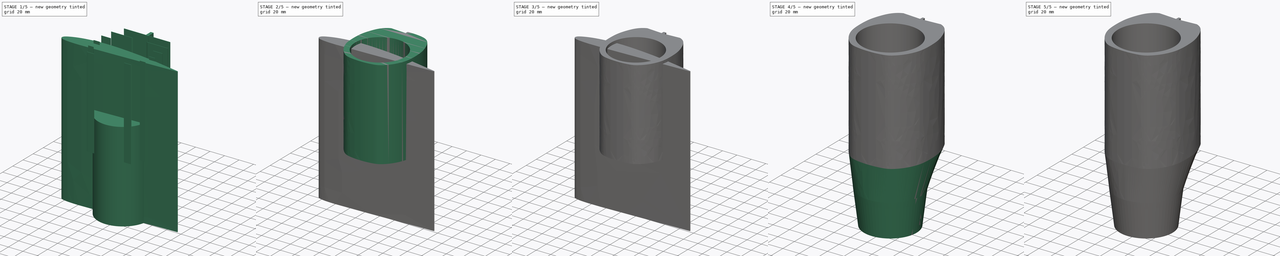
[diagram: build sequence overview — one tinted view per stage of 5, left to right]
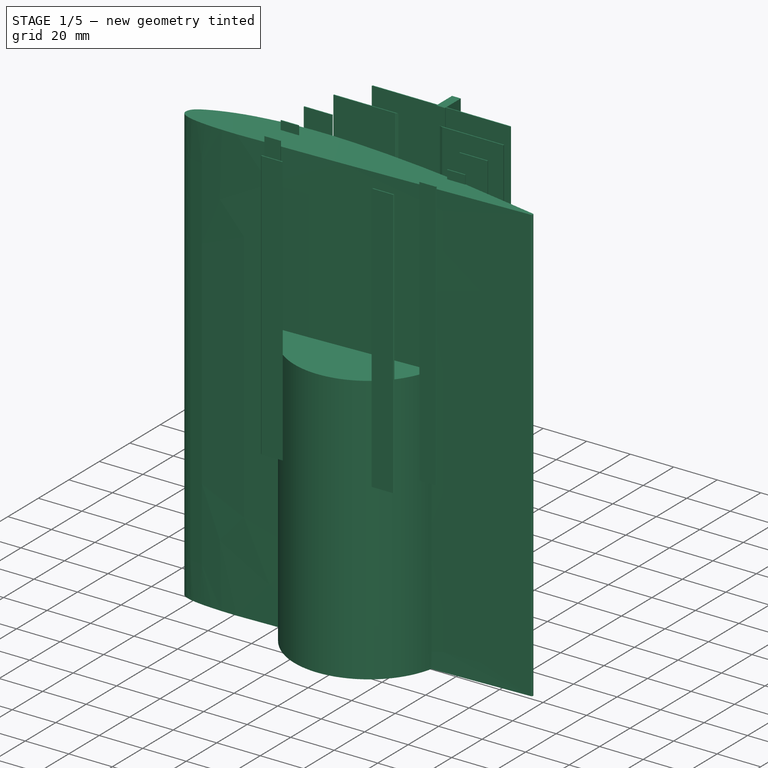
[diagram: stage 1 of 5 — iso view after this stage's code; geometry added in this stage tinted green]
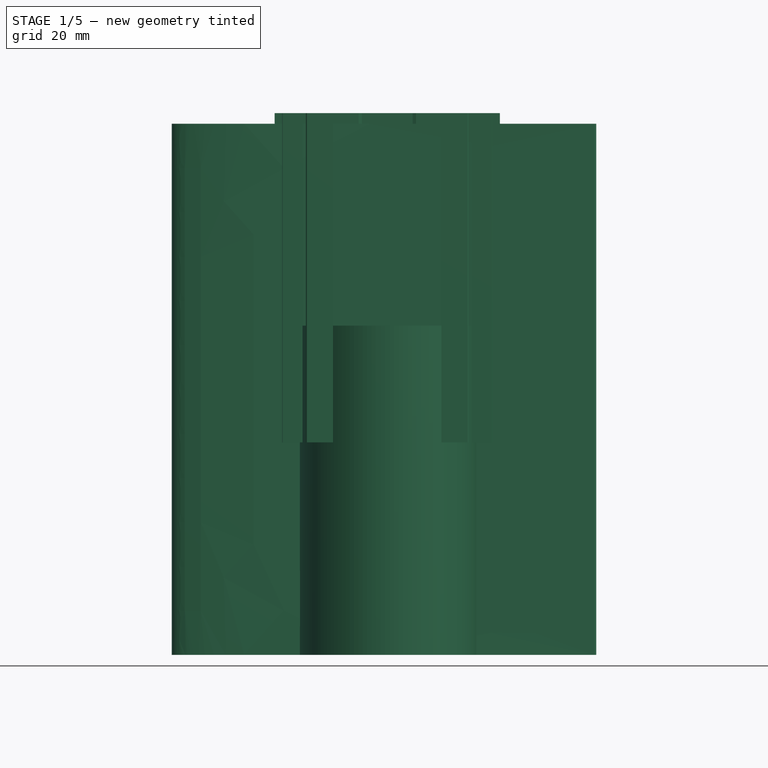
[diagram: stage 1 of 5 — front view after this stage's code; geometry added in this stage tinted green]
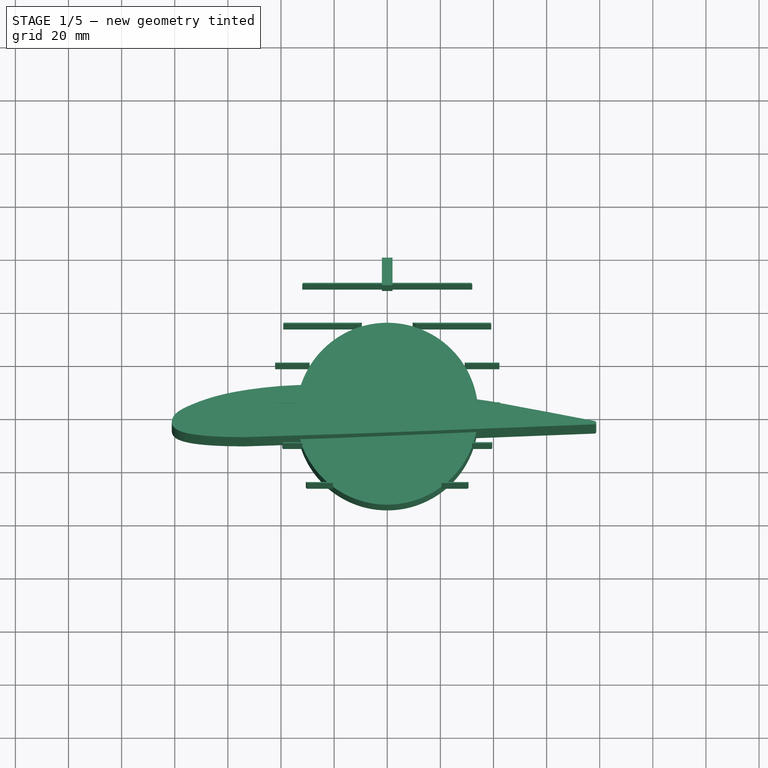
[diagram: stage 1 of 5 — top view after this stage's code; geometry added in this stage tinted green]
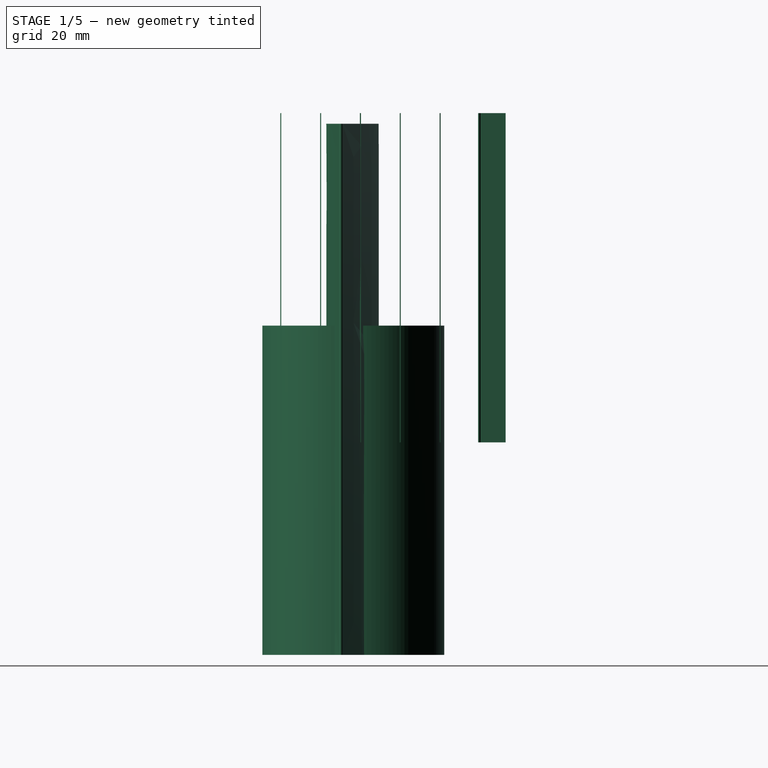
[diagram: stage 1 of 5 — right view after this stage's code; geometry added in this stage tinted green]
FCSTD DOCUMENT  (FreeCAD 0.21R33771 (Git))
Label: fuselage
License: All rights reserved
LicenseURL: http://en.wikipedia.org/wiki/All_rights_reserved
objects: Sketcher::SketchObject×29, PartDesign::Body×19, PartDesign::Pad×18, Part::MultiFuse×11, PartDesign::Thickness×6, Part::MultiCommon×6, Part::Cut×5, PartDesign::AdditiveLoft×4, PartDesign::Pocket×3, Part::Mirroring×3, Part::Box×2, Part::FeaturePython×2, App::MeasureDistance×1
note: 137 computed .brp shape members not serialized (recipe doc carries the construction recipe); baked Part::Feature solids carry a one-line shape summary decoded from their .brp

FEATURE [PartDesign::Body] Body008
  Group = -> [Sketch016,Pad004,Sketch017,Pocket002]
  Origin = -> Origin008
  Placement = pos=(0,0,123) rot=(0,0,1;0rad)
  Tip = -> Pocket002
FEATURE [Part::Box] Box001  label="Cube001"
  AttacherType = Attacher::AttachEngine3D
  Height = 300
  Length = 100
  Placement = pos=(-47.9,0,-5) rot=(0,0,1;0rad)
  Width = 0.4
FEATURE [Part::FeaturePython] Array001  # Draft array (typed FeaturePython)
  AlwaysSyncPlacement = false
  Angle = 360
  ArrayType = 0
  Axis = (0,0,1)
  Base = -> Box001
  Center = (0,0,0)
  Count = 10
  ExpandArray = false
  Fuse = false
  IntervalAxis = (0,0,0)
  IntervalX = (100,0,0)
  IntervalY = (0,15,0)
  IntervalZ = (0,0,35)
  NumberCircles = 3
  NumberPolar = 5
  NumberX = 1
  NumberY = 10
  NumberZ = 1
  Placement = pos=(0,-57.5,0) rot=(0,0,1;0rad)
  PlacementList = 10 placements: arithmetic series from (-47.9,0,-5) step (0,15,0) to (-47.9,135,-5)
  RadialDistance = 50
  ScaleList = (10) [(1,1,1),(1,1,1),(1,1,1),(1,1,1),(1,1,1),(1,1,1),(1,1,1),(1,1,1),(1,1,1),(1,1,1)]
  Symmetry = 1
  TangentialDistance = 25
FEATURE [Sketcher::SketchObject] Sketch018
  AttachmentOffset = pos=(0,0,80) rot=(0,0,1;0rad)
  FullyConstrained = false
  MapMode = 5
  Placement = pos=(0,0,80) rot=(0,0,1;0rad)
  Support = -> [XY_Plane011]
  sketch-geometry (28):
    g0-g13: Circle x14 (B-spline internal-alignment scaffolding for g14; pole/knot coordinates omitted)
    g14: BSplineCurve PolesCount=14 KnotsCount=12 Degree=3 IsPeriodic=0
    g15-g26: GeomPoint x12 (B-spline internal-alignment scaffolding for g14; pole/knot coordinates omitted)
    g27: BSplineCurve PolesCount=14 KnotsCount=12 Degree=3 IsPeriodic=0
  constraints (6):
    c: Weight(g0) = 1
    c: PointOnObject(g14,g-2)
    c: Equal(g0, g1-g13) x13
    c: PointOnObject(g14,g-2)
    c: InternalAlignment(g0-g13 -> g14) x14
    c: InternalAlignment(g15-g26 -> g14) x12
FEATURE [PartDesign::Pad] Pad005
  Direction = (0,0,1)
  Length = 124
  Length2 = 10
  Profile = -> Sketch018
  ReferenceAxis = -> Sketch018 [N_Axis]
  Type = 0
FEATURE [PartDesign::Body] Pad005Body
  Group = -> [Sketch018,Pad005]
  Origin = -> Origin010
  Tip = -> Pad005
FEATURE [Part::MultiCommon] Common002
  Shapes = -> [Pad005Body,Array001]
FEATURE [Sketcher::SketchObject] Sketch019
  FullyConstrained = true
  MapMode = 5
  Support = -> [XY_Plane013]
  sketch-geometry (1):
    g0: Circle CenterX=0 CenterY=0 CenterZ=0 NormalX=0 NormalY=0 NormalZ=1 AngleXU=0 Radius=34.255
  constraints (2):
    c: Coincident(g0,g-1)
    c: Diameter(g0) = 68.51
FEATURE [PartDesign::Pad] Pad006
  Direction = (0,0,1)
  Length = 124
  Length2 = 10
  Profile = -> Sketch019
  ReferenceAxis = -> Sketch019 [N_Axis]
  Type = 0
FEATURE [PartDesign::Body] Body010
  Group = -> [Sketch019,Pad006,Thickness003]
  Origin = -> Origin012
  Placement = pos=(0,0,80) rot=(0,0,1;0rad)
  Tip = -> Thickness003
FEATURE [Sketcher::SketchObject] Sketch020
  FullyConstrained = true
  MapMode = 5
  Support = -> [XY_Plane014]
  sketch-geometry (1):
    g0: Circle CenterX=0 CenterY=0 CenterZ=0 NormalX=0 NormalY=0 NormalZ=1 AngleXU=0 Radius=34.255
  constraints (2):
    c: Coincident(g0,g-1)
    c: Diameter(g0) = 68.51
FEATURE [PartDesign::Pad] Pad007
  Direction = (0,0,1)
  Length = 124
  Length2 = 10
  Profile = -> Sketch020
  ReferenceAxis = -> Sketch020 [N_Axis]
  Type = 0
FEATURE [PartDesign::Body] Body011
  Group = -> [Pad007,Sketch020]
  Origin = -> Origin013
  Placement = pos=(0,0,80) rot=(0,0,1;0rad)
  Tip = -> Pad007
FEATURE [Part::Cut] Cut
  Base = -> Common002
  Tool = -> Body011
FEATURE [Sketcher::SketchObject] Sketch026
  FullyConstrained = false
  MapMode = 5
  Support = -> [XY_Plane020]
  sketch-geometry (30):
    g0: ArcOfCircle CenterX=78.0455 CenterY=-4.69261 CenterZ=0 NormalX=0 NormalY=0 NormalZ=1 AngleXU=0 Radius=0.633228 StartAngle=4.68069 EndAngle=7.80443
    g1-g15: Circle x15 (B-spline internal-alignment scaffolding for g16; pole/knot coordinates omitted)
    g16: BSplineCurve PolesCount=15 KnotsCount=13 Degree=3 IsPeriodic=0
    g17-g29: GeomPoint x13 (B-spline internal-alignment scaffolding for g16; pole/knot coordinates omitted)
  constraints (6):
    c: Weight(g1) = 1
    c: Coincident(g16,g0)
    c: Equal(g1, g2-g15) x14
    c: Coincident(g16,g0)
    c: InternalAlignment(g1-g15 -> g16) x15
    c: InternalAlignment(g17-g29 -> g16) x13
FEATURE [PartDesign::Pad] Pad013
  Direction = (0,0,1)
  Length = 200
  Length2 = 10
  Profile = -> Sketch026
  Type = 0
FEATURE [Sketcher::SketchObject] Sketch027
  FullyConstrained = true
  MapMode = 5
  Placement = pos=(0,0,0) rot=(1,0,0;1.5708rad)
  Support = -> [XZ_Plane018]
  sketch-geometry (4):
    g0: LineSegment StartX=-2 StartY=0 StartZ=0 EndX=2 EndY=0 EndZ=0
    g1: LineSegment StartX=2 StartY=0 StartZ=0 EndX=2 EndY=400 EndZ=0
    g2: LineSegment StartX=2 StartY=400 StartZ=0 EndX=-2 EndY=400 EndZ=0
    g3: LineSegment StartX=-2 StartY=400 StartZ=0 EndX=-2 EndY=0 EndZ=0
  constraints (12):
    c: Coincident(g0,g1)
    c: Coincident(g1,g2)
    c: Coincident(g2,g3)
    c: Coincident(g3,g0)
    c: Horizontal(g0)
    c: Horizontal(g2)
    c: Vertical(g1)
    c: Vertical(g3)
    c: PointOnObject(g0,g-1)
    c: DistanceX(g0,g0) = 4
    c: DistanceX(g-1,g0) = 2
    c: DistanceY(g1,g1) = 400
FEATURE [PartDesign::Pad] Pad014
  Direction = (0,-1,2e-16)
  Length = 15
  Length2 = 10
  Placement = pos=(0,0,0) rot=(1,0,0;1.5708rad)
  Profile = -> Sketch027
  ReferenceAxis = -> Sketch027 [N_Axis]
  Type = 0
FEATURE [PartDesign::Body] Body016
  Group = -> [Sketch027,Pad014]
  Origin = -> Origin018
  Placement = pos=(0,62,0) rot=(0,0,1;0rad)
  Tip = -> Pad014
FEATURE [Sketcher::SketchObject] Sketch028
  AttachmentOffset = pos=(0,0,80) rot=(0,0,1;0rad)
  FullyConstrained = false
  MapMode = 5
  Placement = pos=(0,0,80) rot=(0,0,1;0rad)
  Support = -> [XY_Plane022]
  sketch-geometry (28):
    g0-g13: Circle x14 (B-spline internal-alignment scaffolding for g14; pole/knot coordinates omitted)
    g14: BSplineCurve PolesCount=14 KnotsCount=12 Degree=3 IsPeriodic=0
    g15-g26: GeomPoint x12 (B-spline internal-alignment scaffolding for g14; pole/knot coordinates omitted)
    g27: BSplineCurve PolesCount=14 KnotsCount=12 Degree=3 IsPeriodic=0
  constraints (6):
    c: Weight(g0) = 1
    c: PointOnObject(g14,g-2)
    c: Equal(g0, g1-g13) x13
    c: PointOnObject(g14,g-2)
    c: InternalAlignment(g0-g13 -> g14) x14
    c: InternalAlignment(g15-g26 -> g14) x12
FEATURE [PartDesign::Pad] Pad015
  Direction = (0,0,1)
  Length = 124
  Length2 = 10
  Profile = -> Sketch028
  ReferenceAxis = -> Sketch028 [N_Axis]
  Type = 0
FEATURE [Part::MultiCommon] Common005
  Shapes = -> [Pad015,Body016]
FEATURE [Sketcher::SketchObject] Sketch029
  FullyConstrained = false
  MapMode = 5
  Support = -> [XY_Plane023]
  sketch-geometry (30):
    g0: ArcOfCircle CenterX=78.0455 CenterY=-4.69261 CenterZ=0 NormalX=0 NormalY=0 NormalZ=1 AngleXU=0 Radius=0.633228 StartAngle=4.68069 EndAngle=7.80443
    g1-g15: Circle x15 (B-spline internal-alignment scaffolding for g16; pole/knot coordinates omitted)
    g16: BSplineCurve PolesCount=15 KnotsCount=13 Degree=3 IsPeriodic=0
    g17-g29: GeomPoint x13 (B-spline internal-alignment scaffolding for g16; pole/knot coordinates omitted)
  constraints (6):
    c: Weight(g1) = 1
    c: Coincident(g16,g0)
    c: Equal(g1, g2-g15) x14
    c: Coincident(g16,g0)
    c: InternalAlignment(g1-g15 -> g16) x15
    c: InternalAlignment(g17-g29 -> g16) x13
FEATURE [PartDesign::Pad] Pad016
  Direction = (0,0,1)
  Length = 200
  Length2 = 10
  Profile = -> Sketch029
  Type = 0
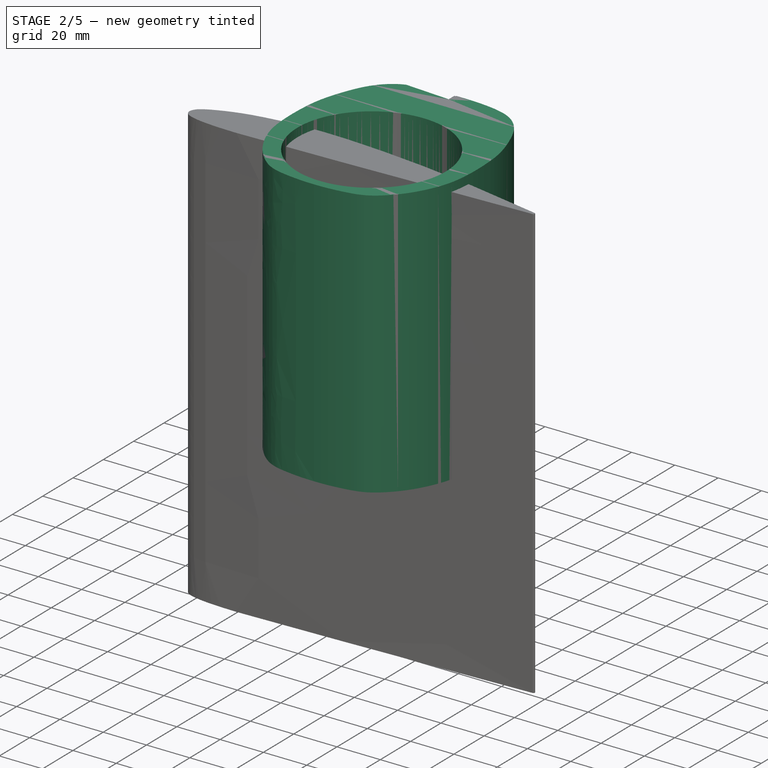
[diagram: stage 2 of 5 — iso view after this stage's code; geometry added in this stage tinted green]
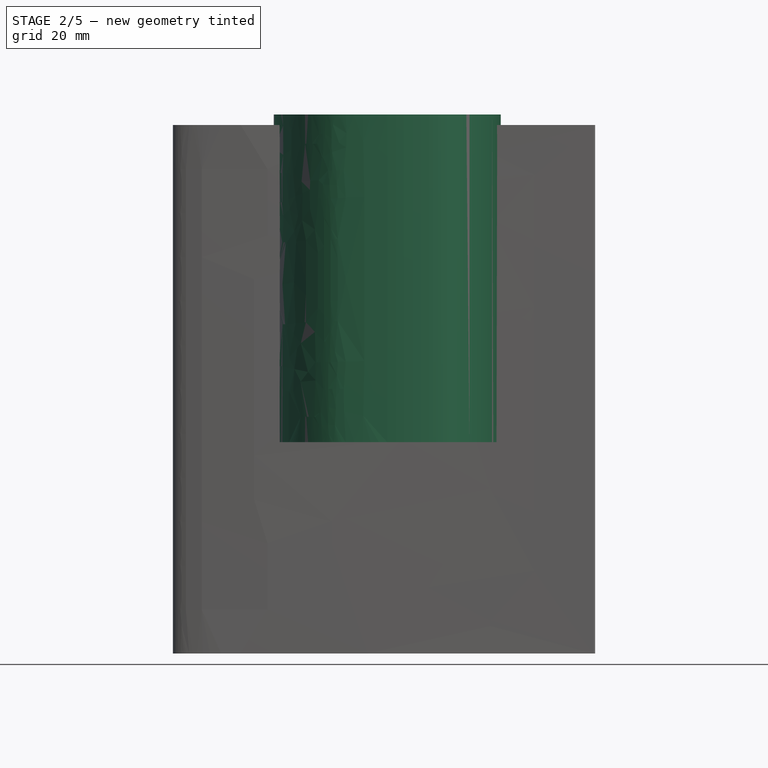
[diagram: stage 2 of 5 — front view after this stage's code; geometry added in this stage tinted green]
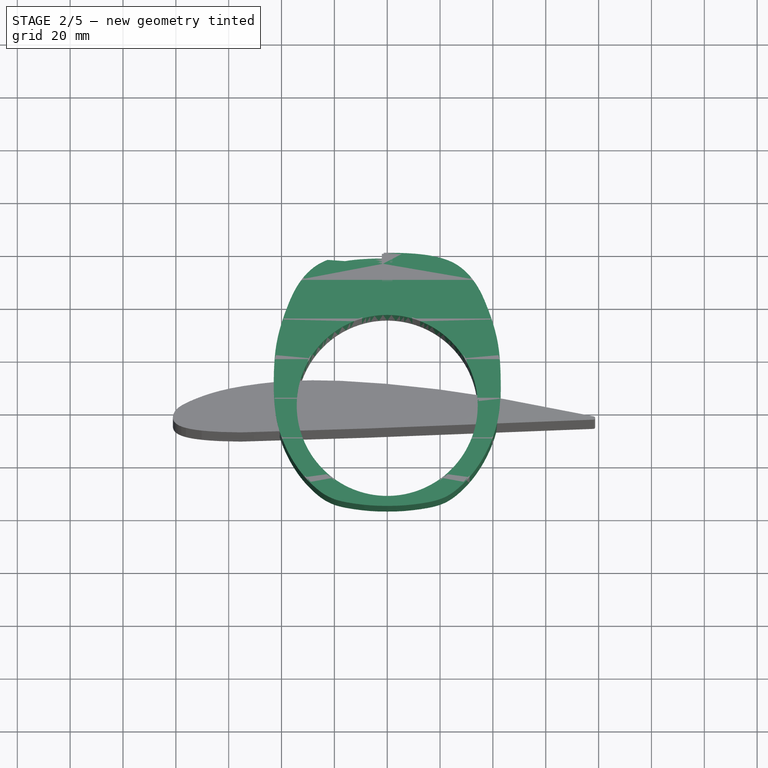
[diagram: stage 2 of 5 — top view after this stage's code; geometry added in this stage tinted green]
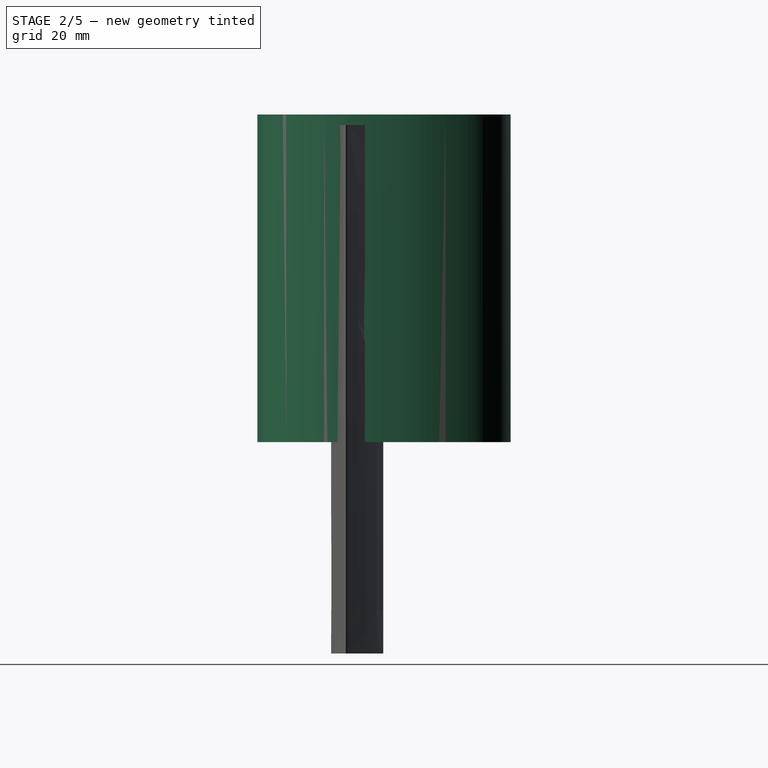
[diagram: stage 2 of 5 — right view after this stage's code; geometry added in this stage tinted green]
FEATURE [Sketcher::SketchObject] Sketch005
  AttachmentOffset = pos=(0,0,80) rot=(0,0,1;0rad)
  FullyConstrained = false
  MapMode = 5
  Placement = pos=(0,0,80) rot=(0,0,1;0rad)
  Support = -> [XY_Plane]
  sketch-geometry (28):
    g0-g13: Circle x14 (B-spline internal-alignment scaffolding for g14; pole/knot coordinates omitted)
    g14: BSplineCurve PolesCount=14 KnotsCount=12 Degree=3 IsPeriodic=0
    g15-g26: GeomPoint x12 (B-spline internal-alignment scaffolding for g14; pole/knot coordinates omitted)
    g27: BSplineCurve PolesCount=14 KnotsCount=12 Degree=3 IsPeriodic=0
  constraints (6):
    c: Weight(g0) = 1
    c: PointOnObject(g14,g-2)
    c: Equal(g0, g1-g13) x13
    c: PointOnObject(g14,g-2)
    c: InternalAlignment(g0-g13 -> g14) x14
    c: InternalAlignment(g15-g26 -> g14) x12
FEATURE [PartDesign::Pad] Pad
  Direction = (0,0,1)
  Length = 124
  Length2 = 10
  Profile = -> Sketch005
  ReferenceAxis = -> Sketch005 [N_Axis]
  Type = 0
FEATURE [PartDesign::Thickness] Thickness
  Base = -> Pad [Face4,Face3]
  BaseFeature = -> Pad
  Intersection = false
  Join = 1
  Mode = 0
  SupportTransform = false
  Value = 0.4
FEATURE [Sketcher::SketchObject] Sketch014
  AttachmentOffset = pos=(0,0,80) rot=(0,0,1;0rad)
  FullyConstrained = false
  MapMode = 5
  Placement = pos=(0,0,80) rot=(0,0,1;0rad)
  Support = -> [XY_Plane007]
  sketch-geometry (28):
    g0-g13: Circle x14 (B-spline internal-alignment scaffolding for g14; pole/knot coordinates omitted)
    g14: BSplineCurve PolesCount=14 KnotsCount=12 Degree=3 IsPeriodic=0
    g15-g26: GeomPoint x12 (B-spline internal-alignment scaffolding for g14; pole/knot coordinates omitted)
    g27: BSplineCurve PolesCount=14 KnotsCount=12 Degree=3 IsPeriodic=0
  constraints (6):
    c: Weight(g0) = 1
    c: PointOnObject(g14,g-2)
    c: Equal(g0, g1-g13) x13
    c: PointOnObject(g14,g-2)
    c: InternalAlignment(g0-g13 -> g14) x14
    c: InternalAlignment(g15-g26 -> g14) x12
FEATURE [PartDesign::Pad] Pad003
  Direction = (0,0,1)
  Length = 1
  Length2 = 10
  Profile = -> Sketch014
  ReferenceAxis = -> Sketch014 [N_Axis]
  Type = 0
FEATURE [Sketcher::SketchObject] Sketch015
  FullyConstrained = false
  MapMode = 5
  Placement = pos=(0,0,81) rot=(0,0,1;0rad)
  Support = -> [Pad003]
  sketch-geometry (1):
    g0: Circle CenterX=0 CenterY=0 CenterZ=0 NormalX=0 NormalY=0 NormalZ=1 AngleXU=0 Radius=34.2551
  constraints (1):
    c: Coincident(g0,g-1)
FEATURE [PartDesign::Pocket] Pocket001
  BaseFeature = -> Pad003
  Direction = (0,0,-1)
  Length = 5
  Length2 = 5
  Profile = -> Sketch015
  ReferenceAxis = -> Sketch015 [N_Axis]
  Type = 0
FEATURE [PartDesign::Body] Body007
  Group = -> [Sketch014,Pad003,Sketch015,Pocket001]
  Origin = -> Origin007
  Tip = -> Pocket001
FEATURE [Sketcher::SketchObject] Sketch016
  AttachmentOffset = pos=(0,0,80) rot=(0,0,1;0rad)
  FullyConstrained = false
  MapMode = 5
  Placement = pos=(0,0,80) rot=(0,0,1;0rad)
  Support = -> [XY_Plane008]
  sketch-geometry (28):
    g0-g13: Circle x14 (B-spline internal-alignment scaffolding for g14; pole/knot coordinates omitted)
    g14: BSplineCurve PolesCount=14 KnotsCount=12 Degree=3 IsPeriodic=0
    g15-g26: GeomPoint x12 (B-spline internal-alignment scaffolding for g14; pole/knot coordinates omitted)
    g27: BSplineCurve PolesCount=14 KnotsCount=12 Degree=3 IsPeriodic=0
  constraints (6):
    c: Weight(g0) = 1
    c: PointOnObject(g14,g-2)
    c: Equal(g0, g1-g13) x13
    c: PointOnObject(g14,g-2)
    c: InternalAlignment(g0-g13 -> g14) x14
    c: InternalAlignment(g15-g26 -> g14) x12
FEATURE [PartDesign::Pad] Pad004
  Direction = (0,0,1)
  Length = 1
  Length2 = 10
  Profile = -> Sketch016
  ReferenceAxis = -> Sketch016 [N_Axis]
  Type = 0
FEATURE [Sketcher::SketchObject] Sketch017
  FullyConstrained = false
  MapMode = 5
  Placement = pos=(0,0,81) rot=(0,0,1;0rad)
  Support = -> [Pad004]
  sketch-geometry (1):
    g0: Circle CenterX=0 CenterY=0 CenterZ=0 NormalX=0 NormalY=0 NormalZ=1 AngleXU=0 Radius=34.2551
  constraints (1):
    c: Coincident(g0,g-1)
FEATURE [PartDesign::Pocket] Pocket002
  BaseFeature = -> Pad004
  Direction = (0,0,-1)
  Length = 5
  Length2 = 5
  Profile = -> Sketch017
  ReferenceAxis = -> Sketch017 [N_Axis]
  Type = 0
FEATURE [PartDesign::Thickness] Thickness003
  Base = -> Pad006 [Face3,Face2]
  BaseFeature = -> Pad006
  Intersection = false
  Join = 0
  Mode = 1
  SupportTransform = false
  Value = 0.4
FEATURE [Part::MultiFuse] Fusion005
  Shapes = -> [Body,Body007,Body008]
FEATURE [Part::MultiFuse] Fusion006
  Shapes = -> [Body010,Cut]
FEATURE [Part::MultiFuse] Fusion007
  Shapes = -> [Fusion005,Fusion006]
FEATURE [Sketcher::SketchObject] Sketch025
  FullyConstrained = false
  MapMode = 5
  Support = -> [XY_Plane019]
  sketch-geometry (30):
    g0: ArcOfCircle CenterX=78.0455 CenterY=-4.69261 CenterZ=0 NormalX=0 NormalY=0 NormalZ=1 AngleXU=0 Radius=0.633228 StartAngle=4.68069 EndAngle=7.80443
    g1-g15: Circle x15 (B-spline internal-alignment scaffolding for g16; pole/knot coordinates omitted)
    g16: BSplineCurve PolesCount=15 KnotsCount=13 Degree=3 IsPeriodic=0
    g17-g29: GeomPoint x13 (B-spline internal-alignment scaffolding for g16; pole/knot coordinates omitted)
  constraints (6):
    c: Weight(g1) = 1
    c: Coincident(g16,g0)
    c: Equal(g1, g2-g15) x14
    c: Coincident(g16,g0)
    c: InternalAlignment(g1-g15 -> g16) x15
    c: InternalAlignment(g17-g29 -> g16) x13
FEATURE [PartDesign::Pad] Pad012
  Direction = (0,0,1)
  Length = 200
  Length2 = 10
  Profile = -> Sketch025
  Type = 0
FEATURE [PartDesign::Body] Body015
  Group = -> [Sketch026,Pad013]
  Origin = -> Origin017
  Placement = pos=(-1.1483,60.1487,162) rot=(-0.034878,-0.998783,-0.034878;1.57201rad)
  Tip = -> Pad013
FEATURE [Part::Cut] Cut001
  Base = -> Fusion007
  Tool = -> Body015
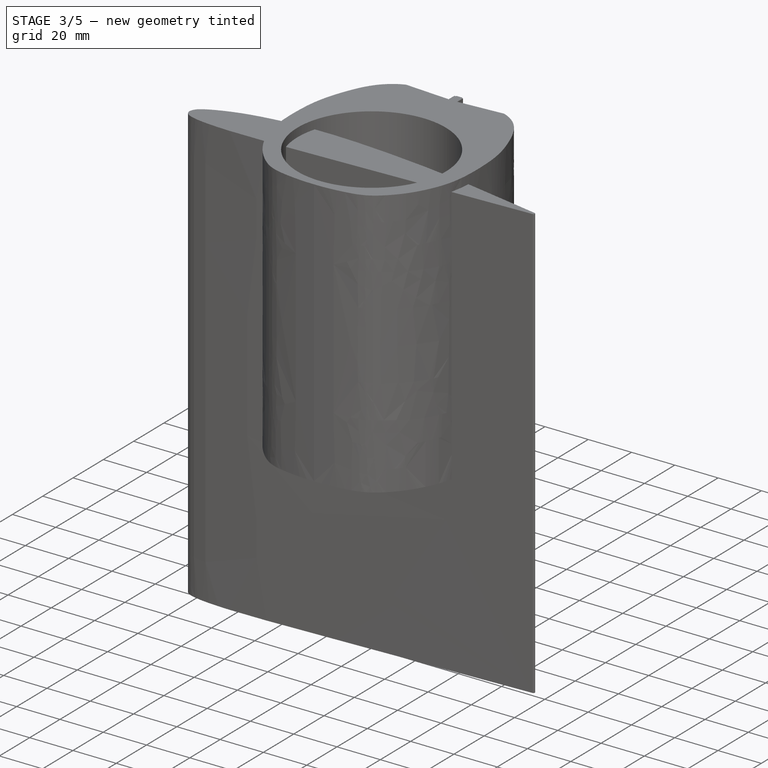
[diagram: stage 3 of 5 — iso view after this stage's code; geometry added in this stage tinted green]
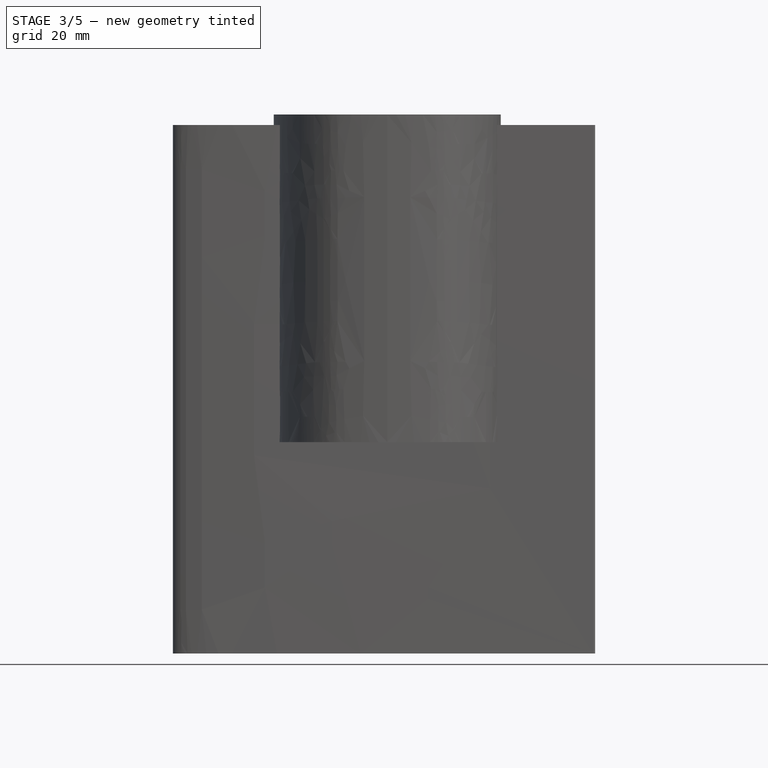
[diagram: stage 3 of 5 — front view after this stage's code; geometry added in this stage tinted green]
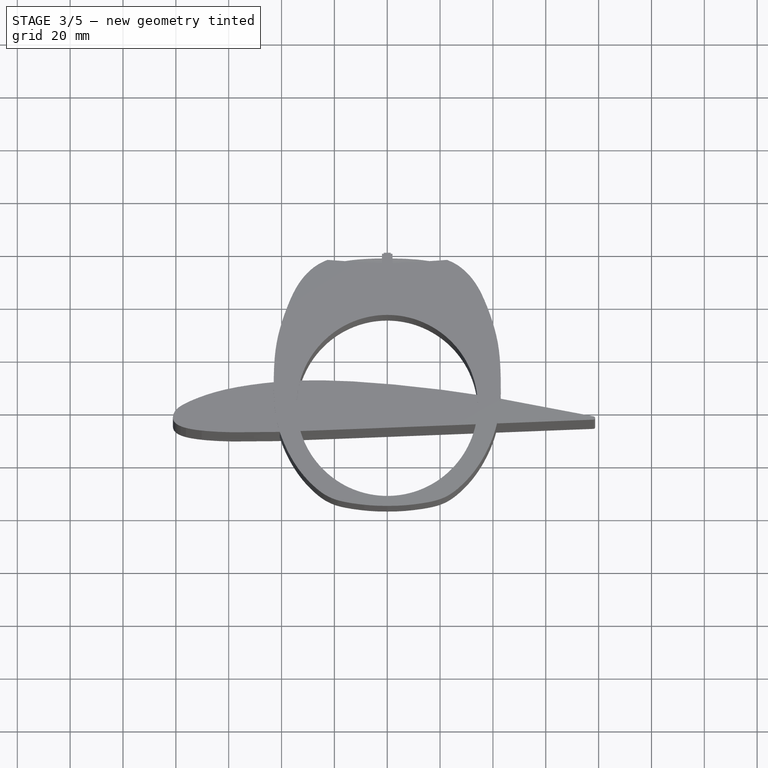
[diagram: stage 3 of 5 — top view after this stage's code; geometry added in this stage tinted green]
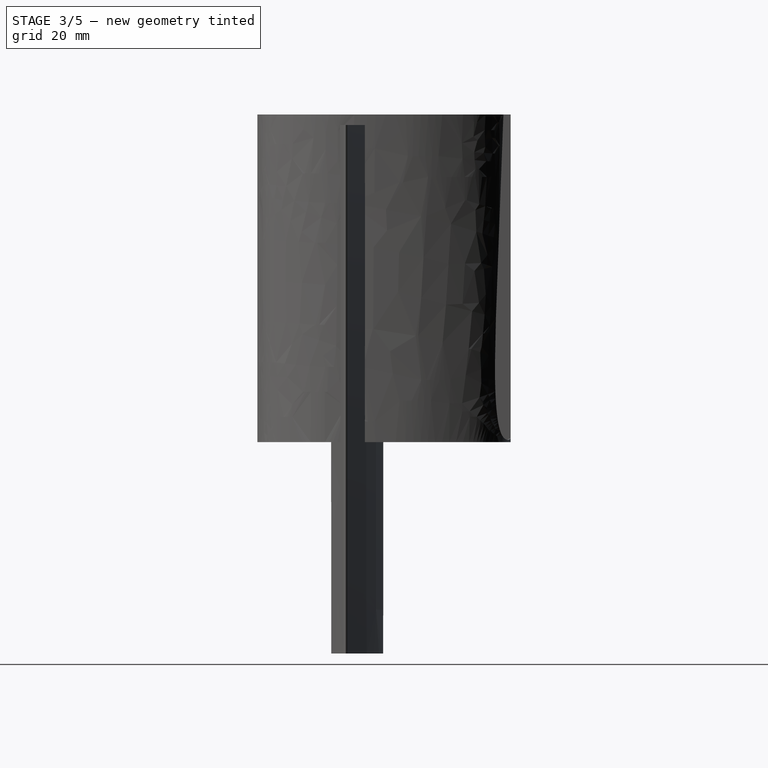
[diagram: stage 3 of 5 — right view after this stage's code; geometry added in this stage tinted green]
FEATURE [App::MeasureDistance] Distance  label="Distance: 124,00 mm"
  Distance = 124
  P1 = (-42.7368,1.58008,80)
  P2 = (-42.7368,1.58008,204)
FEATURE [Sketcher::SketchObject] Sketch021
  FullyConstrained = false
  MapMode = 5
  Support = -> [XY_Plane015]
  sketch-geometry (30):
    g0: ArcOfCircle CenterX=78.0455 CenterY=-4.69261 CenterZ=0 NormalX=0 NormalY=0 NormalZ=1 AngleXU=0 Radius=0.633228 StartAngle=4.68069 EndAngle=7.80443
    g1-g15: Circle x15 (B-spline internal-alignment scaffolding for g16; pole/knot coordinates omitted)
    g16: BSplineCurve PolesCount=15 KnotsCount=13 Degree=3 IsPeriodic=0
    g17-g29: GeomPoint x13 (B-spline internal-alignment scaffolding for g16; pole/knot coordinates omitted)
  constraints (6):
    c: Weight(g1) = 1
    c: Coincident(g16,g0)
    c: Equal(g1, g2-g15) x14
    c: Coincident(g16,g0)
    c: InternalAlignment(g1-g15 -> g16) x15
    c: InternalAlignment(g17-g29 -> g16) x13
FEATURE [PartDesign::Pad] Pad008
  Direction = (0,0,1)
  Length = 200
  Length2 = 10
  Profile = -> Sketch021
  Type = 0
FEATURE [PartDesign::Thickness] Thickness004
  Base = -> Pad008 [Face4,Face3]
  BaseFeature = -> Pad008
  Intersection = false
  Join = 0
  Mode = 1
  SupportTransform = false
  Value = 0.4
FEATURE [PartDesign::Body] Body012
  Group = -> [Sketch021,Pad008,Thickness004]
  Origin = -> Origin014
  Placement = pos=(-1.1483,60.1487,162) rot=(-0.034878,-0.998783,-0.034878;1.57201rad)
  Tip = -> Thickness004
FEATURE [Part::Mirroring] Part__Mirroring  label="Body012 (Mirror #1)"
  Base = (0,0,0)
  Normal = (1,0,0)
  Source = -> Body012
FEATURE [Sketcher::SketchObject] Sketch022
  AttachmentOffset = pos=(0,0,80) rot=(0,0,1;0rad)
  FullyConstrained = false
  MapMode = 5
  Placement = pos=(0,0,80) rot=(0,0,1;0rad)
  Support = -> [XY_Plane016]
  sketch-geometry (28):
    g0-g13: Circle x14 (B-spline internal-alignment scaffolding for g14; pole/knot coordinates omitted)
    g14: BSplineCurve PolesCount=14 KnotsCount=12 Degree=3 IsPeriodic=0
    g15-g26: GeomPoint x12 (B-spline internal-alignment scaffolding for g14; pole/knot coordinates omitted)
    g27: BSplineCurve PolesCount=14 KnotsCount=12 Degree=3 IsPeriodic=0
  constraints (6):
    c: Weight(g0) = 1
    c: PointOnObject(g14,g-2)
    c: Equal(g0, g1-g13) x13
    c: PointOnObject(g14,g-2)
    c: InternalAlignment(g0-g13 -> g14) x14
    c: InternalAlignment(g15-g26 -> g14) x12
FEATURE [PartDesign::Pad] Pad009
  Direction = (0,0,1)
  Length = 124
  Length2 = 10
  Profile = -> Sketch022
  ReferenceAxis = -> Sketch022 [N_Axis]
  Type = 0
FEATURE [Sketcher::SketchObject] Sketch023
  AttachmentOffset = pos=(0,0,80) rot=(0,0,1;0rad)
  FullyConstrained = false
  MapMode = 5
  Placement = pos=(0,0,80) rot=(0,0,1;0rad)
  Support = -> [XY_Plane017]
  sketch-geometry (28):
    g0-g13: Circle x14 (B-spline internal-alignment scaffolding for g14; pole/knot coordinates omitted)
    g14: BSplineCurve PolesCount=14 KnotsCount=12 Degree=3 IsPeriodic=0
    g15-g26: GeomPoint x12 (B-spline internal-alignment scaffolding for g14; pole/knot coordinates omitted)
    g27: BSplineCurve PolesCount=14 KnotsCount=12 Degree=3 IsPeriodic=0
  constraints (6):
    c: Weight(g0) = 1
    c: PointOnObject(g14,g-2)
    c: Equal(g0, g1-g13) x13
    c: PointOnObject(g14,g-2)
    c: InternalAlignment(g0-g13 -> g14) x14
    c: InternalAlignment(g15-g26 -> g14) x12
FEATURE [PartDesign::Pad] Pad010
  Direction = (0,0,1)
  Length = 124
  Length2 = 10
  Profile = -> Sketch023
  ReferenceAxis = -> Sketch023 [N_Axis]
  Type = 0
FEATURE [Sketcher::SketchObject] Sketch024
  FullyConstrained = false
  MapMode = 5
  Support = -> [XY_Plane018]
  sketch-geometry (30):
    g0: ArcOfCircle CenterX=78.0455 CenterY=-4.69261 CenterZ=0 NormalX=0 NormalY=0 NormalZ=1 AngleXU=0 Radius=0.633228 StartAngle=4.68069 EndAngle=7.80443
    g1-g15: Circle x15 (B-spline internal-alignment scaffolding for g16; pole/knot coordinates omitted)
    g16: BSplineCurve PolesCount=15 KnotsCount=13 Degree=3 IsPeriodic=0
    g17-g29: GeomPoint x13 (B-spline internal-alignment scaffolding for g16; pole/knot coordinates omitted)
  constraints (6):
    c: Weight(g1) = 1
    c: Coincident(g16,g0)
    c: Equal(g1, g2-g15) x14
    c: Coincident(g16,g0)
    c: InternalAlignment(g1-g15 -> g16) x15
    c: InternalAlignment(g17-g29 -> g16) x13
FEATURE [PartDesign::Pad] Pad011
  Direction = (0,0,1)
  Length = 200
  Length2 = 10
  Profile = -> Sketch024
  Type = 0
FEATURE [PartDesign::Thickness] Thickness005
  Base = -> Pad011 [Face4,Face3]
  BaseFeature = -> Pad011
  Intersection = false
  Join = 0
  Mode = 1
  SupportTransform = false
  Value = 0.4
FEATURE [PartDesign::Body] Body013
  Group = -> [Sketch024,Pad011,Thickness005]
  Origin = -> Origin015
  Placement = pos=(-1.1483,60.1487,162) rot=(-0.034878,-0.998783,-0.034878;1.57201rad)
  Tip = -> Thickness005
FEATURE [Part::MultiCommon] Common003
  Shapes = -> [Pad010,Body013]
FEATURE [Part::MultiCommon] Common004
  Shapes = -> [Pad009,Part__Mirroring]
FEATURE [PartDesign::Body] Body014
  Group = -> [Sketch025,Pad012]
  Origin = -> Origin016
  Placement = pos=(-1.1483,60.1487,162) rot=(-0.034878,-0.998783,-0.034878;1.57201rad)
  Tip = -> Pad012
FEATURE [Part::Mirroring] Part__Mirroring001  label="Body012 (Mirror #1)001"
  Base = (0,0,0)
  Normal = (1,0,0)
  Source = -> Body014
FEATURE [Part::Cut] Cut002
  Base = -> Cut001
  Tool = -> Part__Mirroring001
FEATURE [Part::MultiFuse] Fusion008
  Shapes = -> [Common004,Cut002]
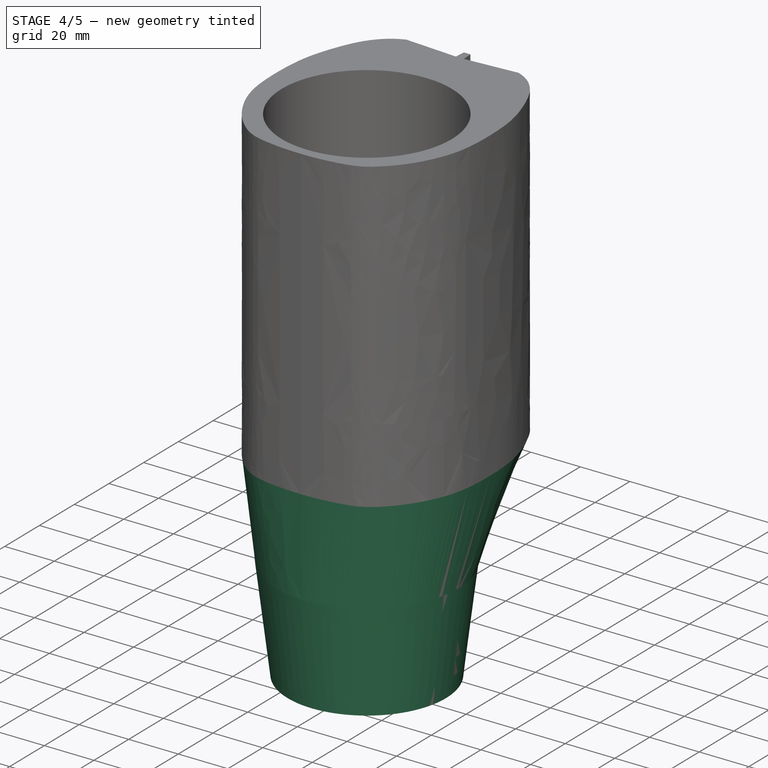
[diagram: stage 4 of 5 — iso view after this stage's code; geometry added in this stage tinted green]
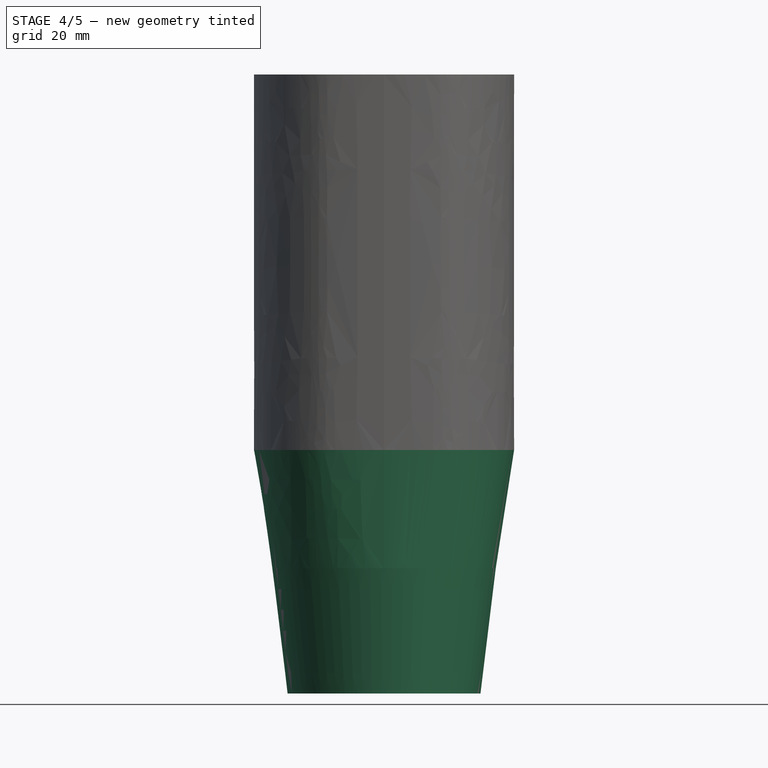
[diagram: stage 4 of 5 — front view after this stage's code; geometry added in this stage tinted green]
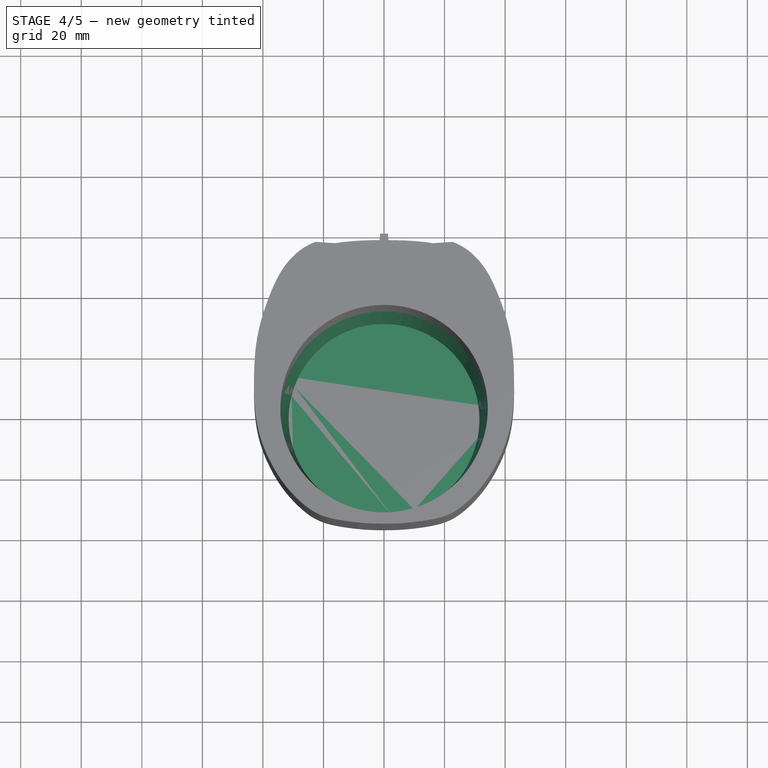
[diagram: stage 4 of 5 — top view after this stage's code; geometry added in this stage tinted green]
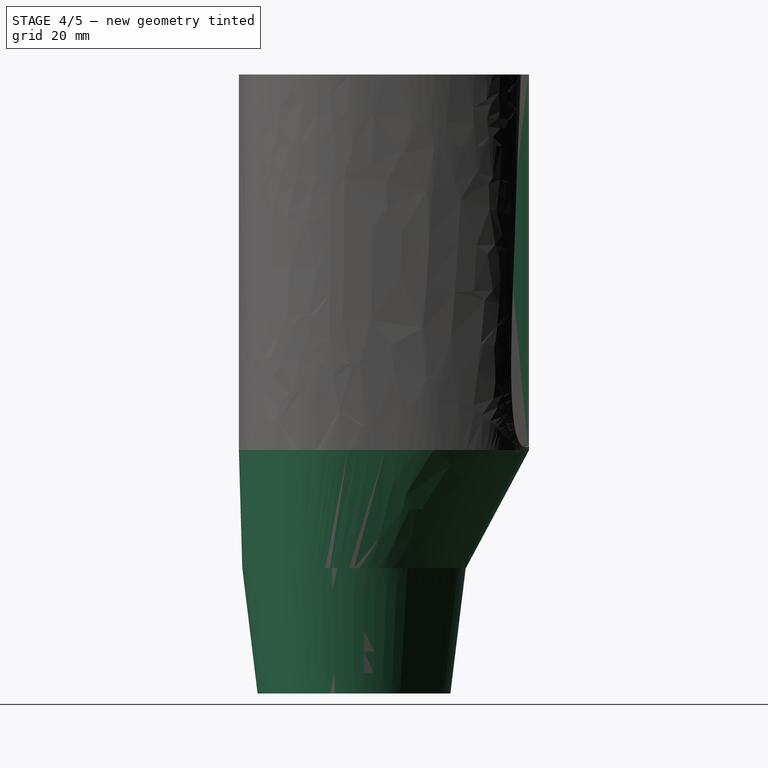
[diagram: stage 4 of 5 — right view after this stage's code; geometry added in this stage tinted green]
FEATURE [Sketcher::SketchObject] Sketch
  FullyConstrained = true
  MapMode = 5
  Support = -> [XY_Plane001]
  sketch-geometry (1):
    g0: Circle CenterX=0 CenterY=0 CenterZ=0 NormalX=0 NormalY=0 NormalZ=1 AngleXU=0 Radius=31.5
  constraints (2):
    c: Coincident(g0,g-1)
    c: Diameter(g0) = 63
FEATURE [Sketcher::SketchObject] Sketch001
  AttachmentOffset = pos=(0,0,41) rot=(0,0,1;0rad)
  FullyConstrained = true
  MapMode = 5
  Placement = pos=(0,0,41) rot=(0,0,1;0rad)
  Support = -> [XY_Plane001]
  sketch-geometry (1):
    g0: Circle CenterX=0 CenterY=0 CenterZ=0 NormalX=0 NormalY=0 NormalZ=1 AngleXU=0 Radius=36.5
  constraints (2):
    c: Coincident(g0,g-1)
    c: Diameter(g0) = 73
FEATURE [PartDesign::AdditiveLoft] AdditiveLoft
  Closed = false
  Profile = -> Sketch
  Ruled = false
  Sections = -> [Sketch001]
FEATURE [Sketcher::SketchObject] Sketch004
  AttachmentOffset = pos=(0,0,41) rot=(0,0,1;0rad)
  FullyConstrained = true
  MapMode = 5
  Placement = pos=(0,0,41) rot=(0,0,1;0rad)
  Support = -> [XY_Plane002]
  sketch-geometry (1):
    g0: Circle CenterX=0 CenterY=0 CenterZ=0 NormalX=0 NormalY=0 NormalZ=1 AngleXU=0 Radius=36.5
  constraints (2):
    c: Coincident(g0,g-1)
    c: Diameter(g0) = 73
FEATURE [Sketcher::SketchObject] Sketch006
  AttachmentOffset = pos=(0,0,80) rot=(0,0,1;0rad)
  FullyConstrained = false
  MapMode = 5
  Placement = pos=(0,0,80) rot=(0,0,1;0rad)
  Support = -> [XY_Plane002]
  sketch-geometry (28):
    g0-g13: Circle x14 (B-spline internal-alignment scaffolding for g14; pole/knot coordinates omitted)
    g14: BSplineCurve PolesCount=14 KnotsCount=12 Degree=3 IsPeriodic=0
    g15-g26: GeomPoint x12 (B-spline internal-alignment scaffolding for g14; pole/knot coordinates omitted)
    g27: BSplineCurve PolesCount=14 KnotsCount=12 Degree=3 IsPeriodic=0
  constraints (6):
    c: Weight(g0) = 1
    c: PointOnObject(g14,g-2)
    c: Equal(g0, g1-g13) x13
    c: PointOnObject(g14,g-2)
    c: InternalAlignment(g0-g13 -> g14) x14
    c: InternalAlignment(g15-g26 -> g14) x12
FEATURE [PartDesign::AdditiveLoft] AdditiveLoft001
  Closed = false
  Profile = -> Sketch004
  Ruled = false
  Sections = -> [Sketch006]
FEATURE [Sketcher::SketchObject] Sketch011
  AttachmentOffset = pos=(0,0,80) rot=(0,0,1;0rad)
  FullyConstrained = false
  MapMode = 5
  Placement = pos=(0,0,80) rot=(0,0,1;0rad)
  Support = -> [XY_Plane005]
  sketch-geometry (28):
    g0-g13: Circle x14 (B-spline internal-alignment scaffolding for g14; pole/knot coordinates omitted)
    g14: BSplineCurve PolesCount=14 KnotsCount=12 Degree=3 IsPeriodic=0
    g15-g26: GeomPoint x12 (B-spline internal-alignment scaffolding for g14; pole/knot coordinates omitted)
    g27: BSplineCurve PolesCount=14 KnotsCount=12 Degree=3 IsPeriodic=0
  constraints (6):
    c: Weight(g0) = 1
    c: PointOnObject(g14,g-2)
    c: Equal(g0, g1-g13) x13
    c: PointOnObject(g14,g-2)
    c: InternalAlignment(g0-g13 -> g14) x14
    c: InternalAlignment(g15-g26 -> g14) x12
FEATURE [PartDesign::Pad] Pad001
  Direction = (0,0,1)
  Length = 1
  Length2 = 10
  Profile = -> Sketch011
  ReferenceAxis = -> Sketch011 [N_Axis]
  Type = 0
FEATURE [Sketcher::SketchObject] Sketch012
  FullyConstrained = false
  MapMode = 5
  Placement = pos=(0,0,81) rot=(0,0,1;0rad)
  Support = -> [Pad001]
  sketch-geometry (1):
    g0: Circle CenterX=0 CenterY=0 CenterZ=0 NormalX=0 NormalY=0 NormalZ=1 AngleXU=0 Radius=34.2551
  constraints (1):
    c: Coincident(g0,g-1)
FEATURE [PartDesign::Pocket] Pocket
  BaseFeature = -> Pad001
  Direction = (0,0,-1)
  Length = 5
  Length2 = 5
  Profile = -> Sketch012
  ReferenceAxis = -> Sketch012 [N_Axis]
  Type = 0
FEATURE [PartDesign::Body] Body006
  Group = -> [Sketch013,Pad002]
  Origin = -> Origin006
  Tip = -> Pad002
FEATURE [PartDesign::Thickness] Thickness001
  Base = -> AdditiveLoft001 [Face3,Face1]
  BaseFeature = -> AdditiveLoft001
  Intersection = false
  Join = 1
  Mode = 0
  SupportTransform = false
  Value = 0.4
FEATURE [PartDesign::Body] Body002
  Group = -> [Sketch004,Sketch006,AdditiveLoft001,Thickness001]
  Origin = -> Origin002
  Tip = -> Thickness001
FEATURE [PartDesign::Thickness] Thickness002
  Base = -> AdditiveLoft [Face3]
  BaseFeature = -> AdditiveLoft
  Intersection = false
  Join = 1
  Mode = 0
  SupportTransform = false
  Value = 0.4
FEATURE [Part::MultiFuse] Fusion009
  Shapes = -> [Fusion008,Common003]
FEATURE [Part::MultiFuse] Fusion010
  Shapes = -> [Fusion009,Common005]
FEATURE [PartDesign::Body] Body017
  Group = -> [Sketch029,Pad016]
  Origin = -> Origin019
  Placement = pos=(-1.1483,60.1487,162) rot=(-0.034878,-0.998783,-0.034878;1.57201rad)
  Tip = -> Pad016
FEATURE [Sketcher::SketchObject] Sketch030
  FullyConstrained = false
  MapMode = 5
  Support = -> [XY_Plane024]
  sketch-geometry (30):
    g0: ArcOfCircle CenterX=78.0455 CenterY=-4.69261 CenterZ=0 NormalX=0 NormalY=0 NormalZ=1 AngleXU=0 Radius=0.633228 StartAngle=4.68069 EndAngle=7.80443
    g1-g15: Circle x15 (B-spline internal-alignment scaffolding for g16; pole/knot coordinates omitted)
    g16: BSplineCurve PolesCount=15 KnotsCount=13 Degree=3 IsPeriodic=0
    g17-g29: GeomPoint x13 (B-spline internal-alignment scaffolding for g16; pole/knot coordinates omitted)
  constraints (6):
    c: Weight(g1) = 1
    c: Coincident(g16,g0)
    c: Equal(g1, g2-g15) x14
    c: Coincident(g16,g0)
    c: InternalAlignment(g1-g15 -> g16) x15
    c: InternalAlignment(g17-g29 -> g16) x13
FEATURE [PartDesign::Pad] Pad017
  Direction = (0,0,1)
  Length = 200
  Length2 = 10
  Profile = -> Sketch030
  Type = 0
FEATURE [PartDesign::Body] Body018
  Group = -> [Sketch030,Pad017]
  Origin = -> Origin020
  Placement = pos=(-1.1483,60.1487,162) rot=(-0.034878,-0.998783,-0.034878;1.57201rad)
  Tip = -> Pad017
FEATURE [Part::Mirroring] Part__Mirroring002  label="Body012 (Mirror #1)002"
  Base = (0,0,0)
  Normal = (1,0,0)
  Source = -> Body018
FEATURE [Part::Cut] Cut003
  Base = -> Fusion010
  Tool = -> Body017
FEATURE [Part::Cut] Cut004
  Base = -> Cut003
  Tool = -> Part__Mirroring002
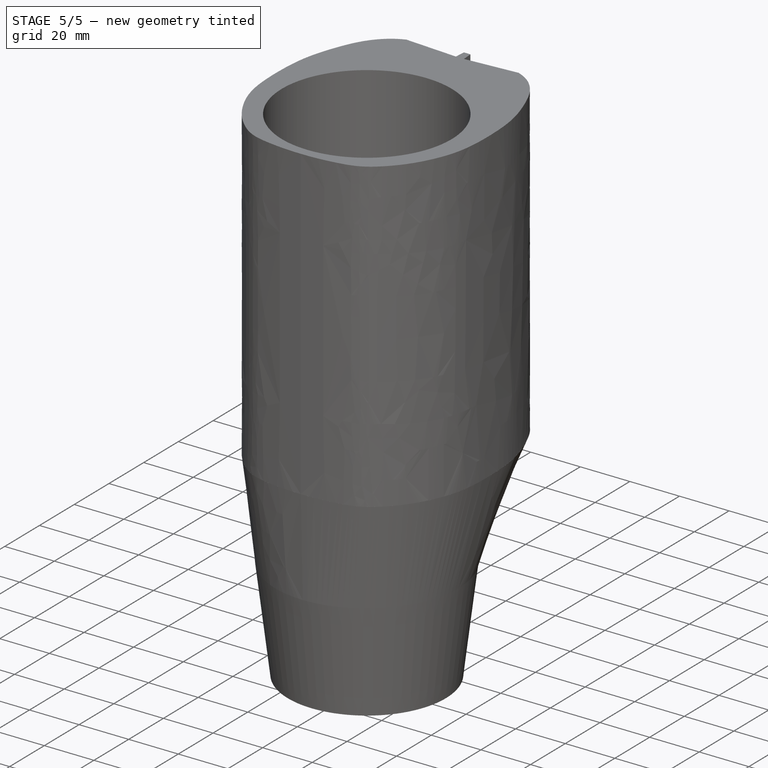
[diagram: stage 5 of 5 — iso view after this stage's code; geometry added in this stage tinted green]
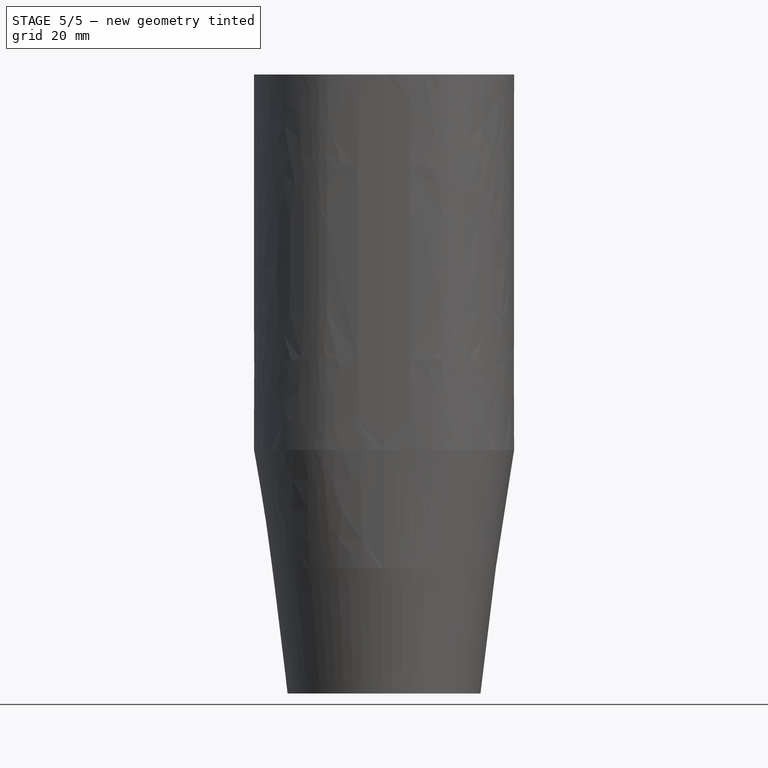
[diagram: stage 5 of 5 — front view after this stage's code; geometry added in this stage tinted green]
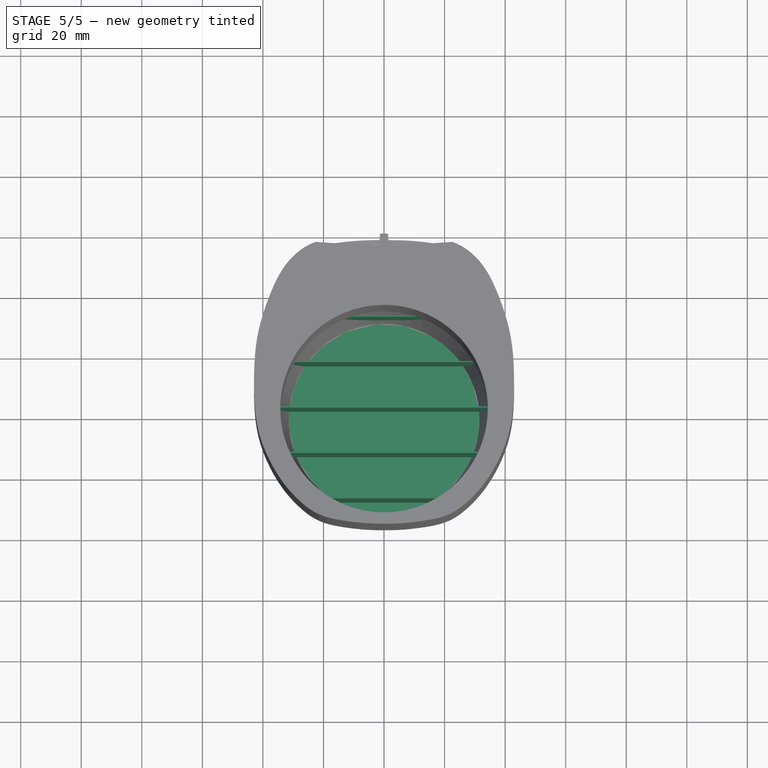
[diagram: stage 5 of 5 — top view after this stage's code; geometry added in this stage tinted green]
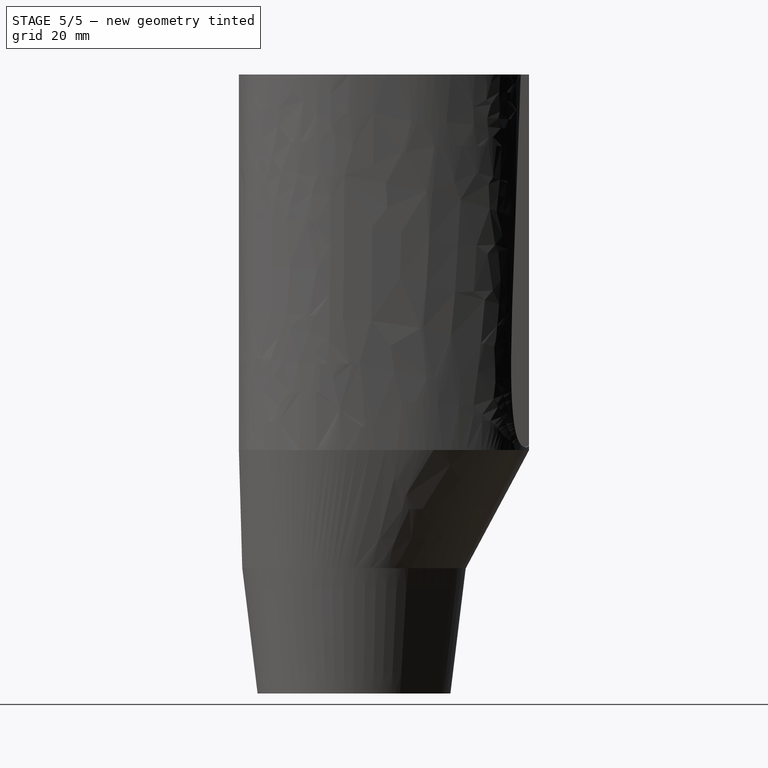
[diagram: stage 5 of 5 — right view after this stage's code; geometry added in this stage tinted green]
FEATURE [PartDesign::Body] Body
  Group = -> [Sketch005,Pad,Thickness]
  Origin = -> Origin
  Tip = -> Thickness
FEATURE [Part::Box] Box  label="Cube"
  AttacherType = Attacher::AttachEngine3D
  Height = 100
  Length = 100
  Placement = pos=(-47.9,0,-5) rot=(0,0,1;0rad)
  Width = 0.4
FEATURE [Part::FeaturePython] Array  # Draft array (typed FeaturePython)
  AlwaysSyncPlacement = false
  Angle = 360
  ArrayType = 0
  Axis = (0,0,1)
  Base = -> Box
  Center = (0,0,0)
  Count = 10
  ExpandArray = false
  Fuse = false
  IntervalAxis = (0,0,0)
  IntervalX = (100,0,0)
  IntervalY = (0,15,0)
  IntervalZ = (0,0,35)
  NumberCircles = 3
  NumberPolar = 5
  NumberX = 1
  NumberY = 10
  NumberZ = 1
  Placement = pos=(0,-57.5,0) rot=(0,0,1;0rad)
  PlacementList = 10 placements: arithmetic series from (-47.9,0,-5) step (0,15,0) to (-47.9,135,-5)
  RadialDistance = 50
  ScaleList = (10) [(1,1,1),(1,1,1),(1,1,1),(1,1,1),(1,1,1),(1,1,1),(1,1,1),(1,1,1),(1,1,1),(1,1,1)]
  Symmetry = 1
  TangentialDistance = 25
FEATURE [Sketcher::SketchObject] Sketch007
  FullyConstrained = true
  MapMode = 5
  Support = -> [XY_Plane003]
  sketch-geometry (1):
    g0: Circle CenterX=0 CenterY=0 CenterZ=0 NormalX=0 NormalY=0 NormalZ=1 AngleXU=0 Radius=31.5
  constraints (2):
    c: Coincident(g0,g-1)
    c: Diameter(g0) = 63
FEATURE [Sketcher::SketchObject] Sketch008
  AttachmentOffset = pos=(0,0,41) rot=(0,0,1;0rad)
  FullyConstrained = true
  MapMode = 5
  Placement = pos=(0,0,41) rot=(0,0,1;0rad)
  Support = -> [XY_Plane003]
  sketch-geometry (1):
    g0: Circle CenterX=0 CenterY=0 CenterZ=0 NormalX=0 NormalY=0 NormalZ=1 AngleXU=0 Radius=36.5
  constraints (2):
    c: Coincident(g0,g-1)
    c: Diameter(g0) = 73
FEATURE [PartDesign::AdditiveLoft] AdditiveLoft002
  Closed = false
  Profile = -> Sketch007
  Ruled = false
  Sections = -> [Sketch008]
FEATURE [PartDesign::Body] Body003
  Group = -> [Sketch007,Sketch008,AdditiveLoft002]
  Origin = -> Origin003
  Tip = -> AdditiveLoft002
FEATURE [Sketcher::SketchObject] Sketch009
  AttachmentOffset = pos=(0,0,41) rot=(0,0,1;0rad)
  FullyConstrained = true
  MapMode = 5
  Placement = pos=(0,0,41) rot=(0,0,1;0rad)
  Support = -> [XY_Plane004]
  sketch-geometry (1):
    g0: Circle CenterX=0 CenterY=0 CenterZ=0 NormalX=0 NormalY=0 NormalZ=1 AngleXU=0 Radius=36.5
  constraints (2):
    c: Coincident(g0,g-1)
    c: Diameter(g0) = 73
FEATURE [Sketcher::SketchObject] Sketch010
  AttachmentOffset = pos=(0,0,80) rot=(0,0,1;0rad)
  FullyConstrained = false
  MapMode = 5
  Placement = pos=(0,0,80) rot=(0,0,1;0rad)
  Support = -> [XY_Plane004]
  sketch-geometry (28):
    g0-g13: Circle x14 (B-spline internal-alignment scaffolding for g14; pole/knot coordinates omitted)
    g14: BSplineCurve PolesCount=14 KnotsCount=12 Degree=3 IsPeriodic=0
    g15-g26: GeomPoint x12 (B-spline internal-alignment scaffolding for g14; pole/knot coordinates omitted)
    g27: BSplineCurve PolesCount=14 KnotsCount=12 Degree=3 IsPeriodic=0
  constraints (6):
    c: Weight(g0) = 1
    c: PointOnObject(g14,g-2)
    c: Equal(g0, g1-g13) x13
    c: PointOnObject(g14,g-2)
    c: InternalAlignment(g0-g13 -> g14) x14
    c: InternalAlignment(g15-g26 -> g14) x12
FEATURE [PartDesign::AdditiveLoft] AdditiveLoft003
  Closed = false
  Profile = -> Sketch009
  Ruled = false
  Sections = -> [Sketch010]
FEATURE [PartDesign::Body] Body004
  Group = -> [Sketch009,Sketch010,AdditiveLoft003]
  Origin = -> Origin004
  Tip = -> AdditiveLoft003
FEATURE [Part::MultiFuse] Fusion001
  Shapes = -> [Body004,Body003]
FEATURE [Part::MultiCommon] Common
  Shapes = -> [Fusion001,Array]
FEATURE [PartDesign::Body] Body005
  Group = -> [Sketch011,Pad001,Sketch012,Pocket]
  Origin = -> Origin005
  Placement = pos=(0,0,-1) rot=(0,0,1;0rad)
  Tip = -> Pocket
FEATURE [Part::MultiCommon] Common001
  Shapes = -> [Fusion001,Body005]
FEATURE [Sketcher::SketchObject] Sketch013
  FullyConstrained = true
  MapMode = 5
  Support = -> [XY_Plane006]
  sketch-geometry (1):
    g0: Circle CenterX=0 CenterY=0 CenterZ=0 NormalX=0 NormalY=0 NormalZ=1 AngleXU=0 Radius=31.5
  constraints (2):
    c: Coincident(g0,g-1)
    c: Diameter(g0) = 63
FEATURE [PartDesign::Pad] Pad002
  Direction = (0,0,1)
  Length = 1
  Length2 = 10
  Profile = -> Sketch013
  ReferenceAxis = -> Sketch013 [N_Axis]
  Type = 0
  UseCustomVector = true
FEATURE [PartDesign::Body] Body001
  Group = -> [Sketch,Sketch001,AdditiveLoft,Thickness002]
  Origin = -> Origin001
  Tip = -> Thickness002
FEATURE [Part::MultiFuse] Fusion
  Shapes = -> [Body001,Body002]
FEATURE [Part::MultiFuse] Fusion002
  Shapes = -> [Common001,Fusion]
FEATURE [Part::MultiFuse] Fusion003
  Shapes = -> [Common,Fusion002]
FEATURE [Part::MultiFuse] Fusion004
  Shapes = -> [Fusion003,Body006]
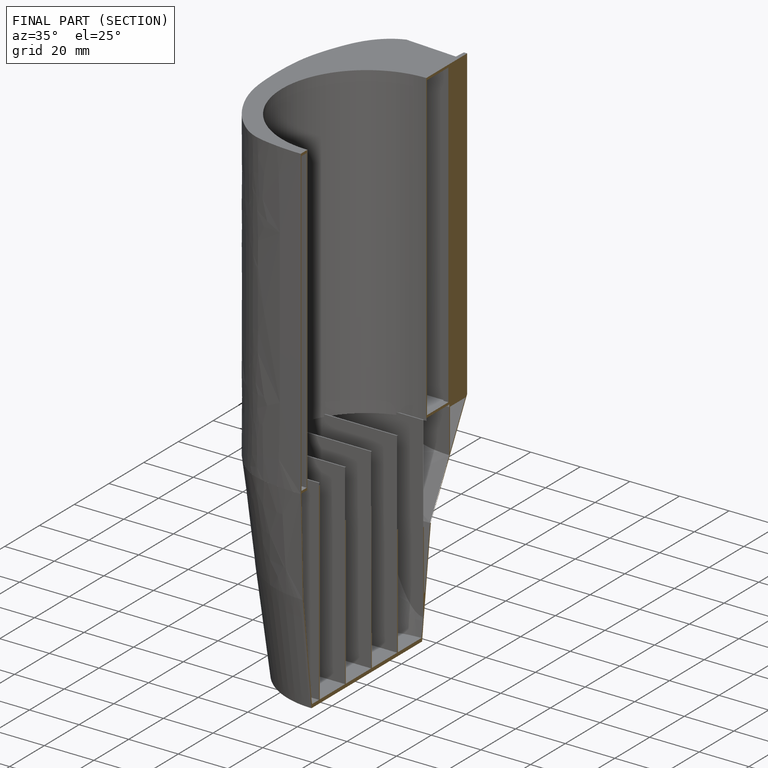
[diagram: finished part — half-section view (interior)]
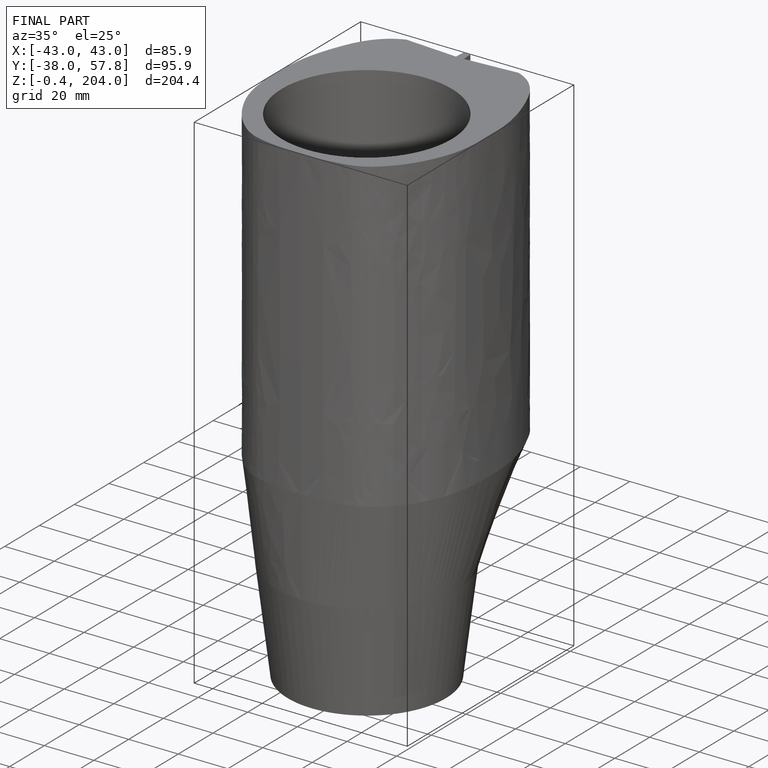
[diagram: finished part — iso view with bounding-box wireframe]
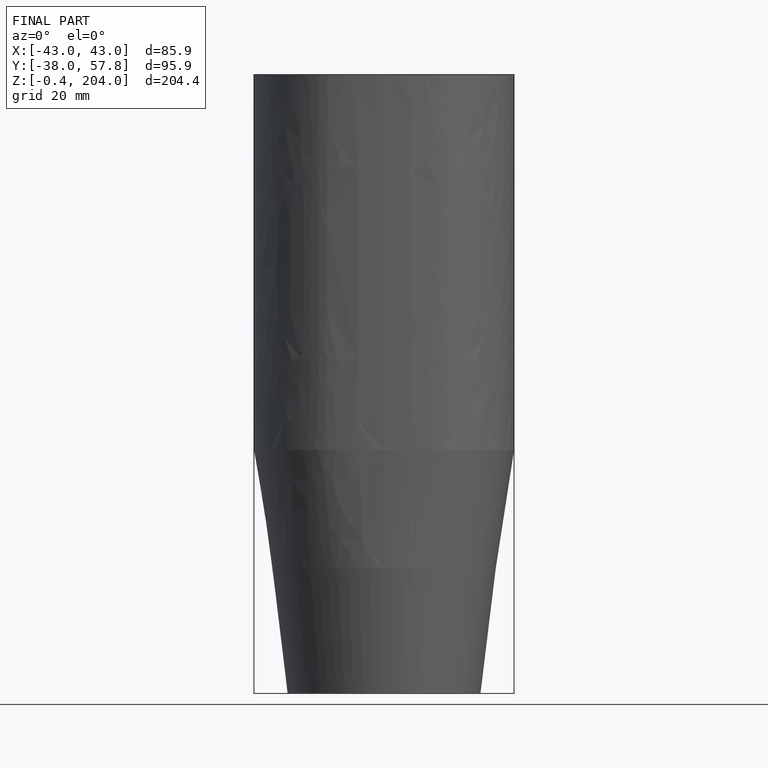
[diagram: finished part — front view with bounding-box wireframe]
